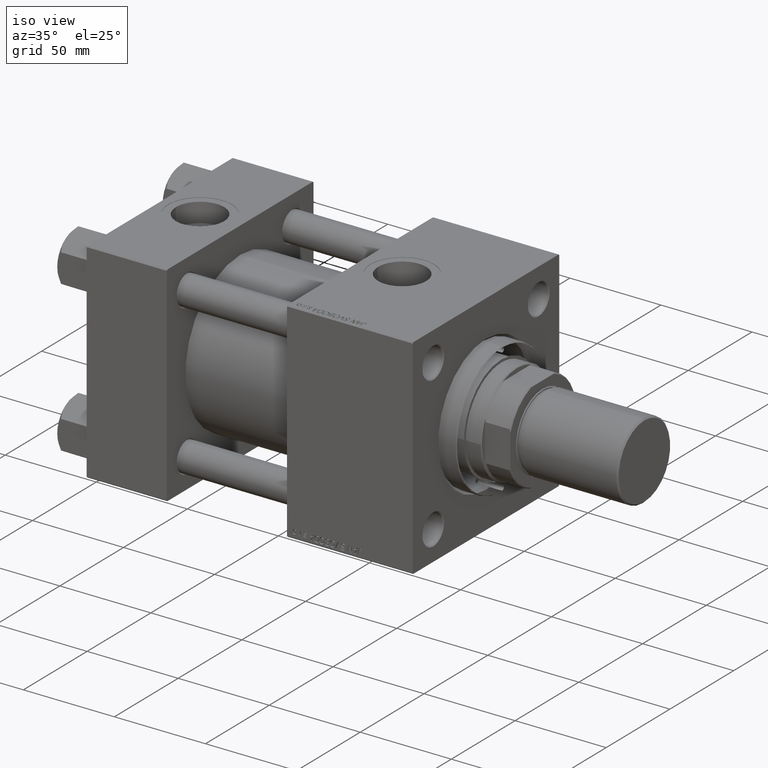
[diagram: clean part render]
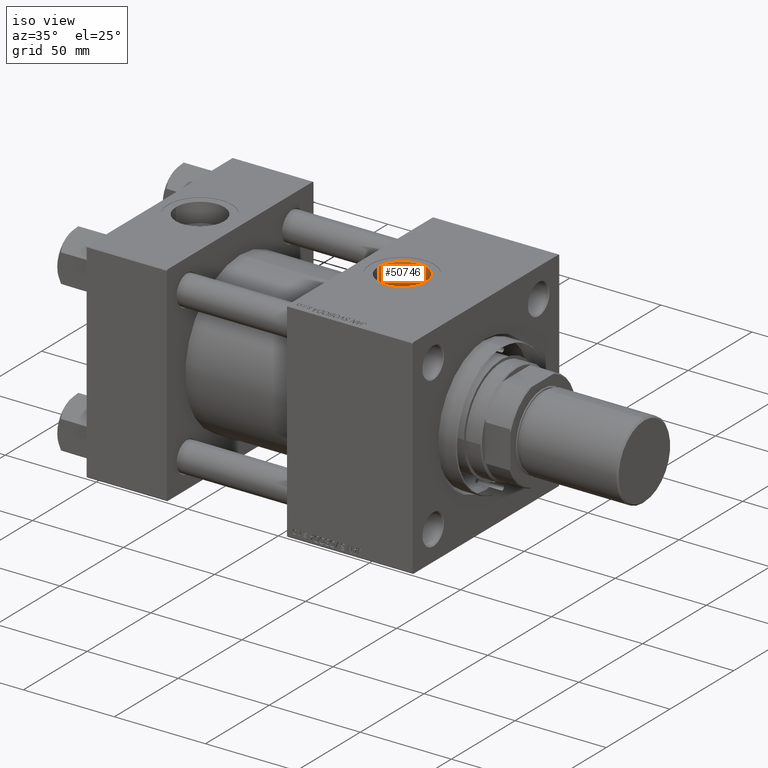
[diagram: same view with one face highlighted and labeled with its STEP entity id]
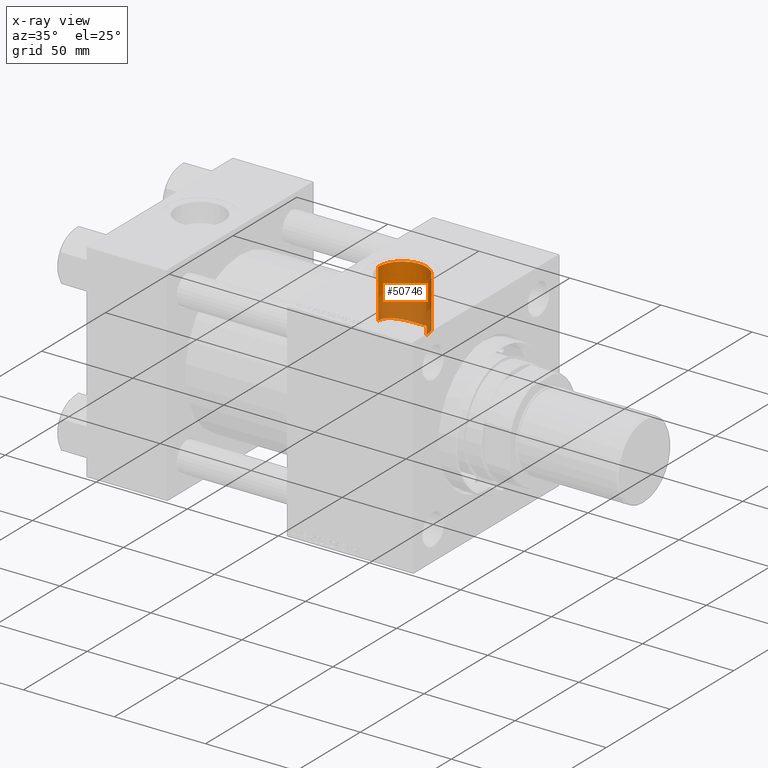
[diagram: x-ray of the same camera — body ghosted, the highlighted face saturated]
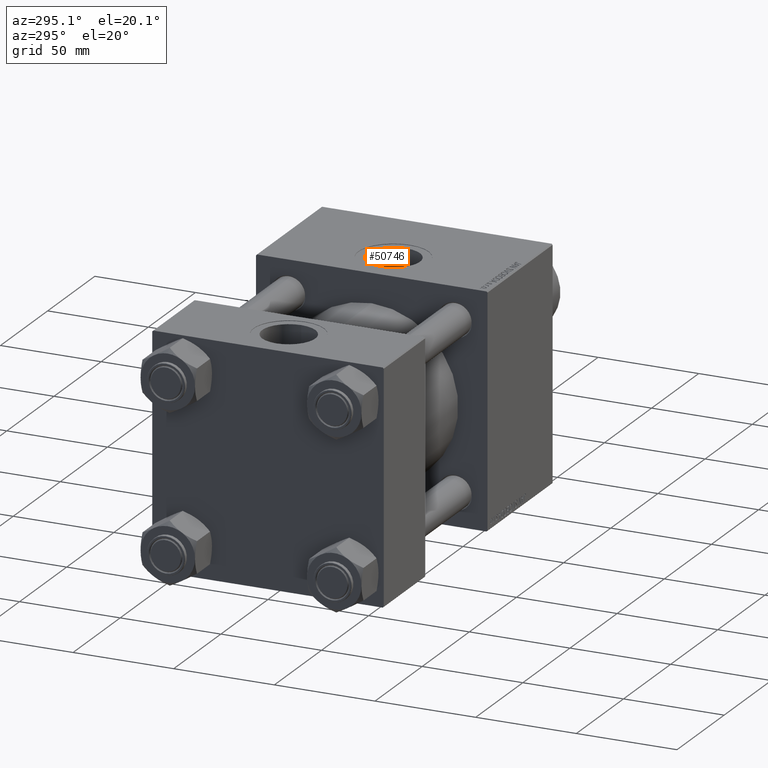
[diagram: same view with one face highlighted and labeled with its STEP entity id]
A machine part, iso view. The second image highlights one B-rep face of the part: STEP entity #50746.
The next image is the same camera in x-ray: the body ghosted, the highlighted face saturated — about 46% of this face is hidden behind the body in this view.
A second angle (auxiliary view) of the same face is appended — the face is thin or edge-on in the first view.
In plain terms, the highlighted cylindrical surface (edge-blend (fillet) strip) has radius 13.22 mm, axis along (0, 0, -1).
Its self-contained STEP definition (entity closure, byte-faithful):
#17 = DIRECTION ( 'NONE',  ( 0.000000000000000000, 0.000000000000000000, -1.000000000000000000 ) ) ;
#78 = CARTESIAN_POINT ( 'NONE',  ( 132.1158780443898024, 13.21938793416951974, 27.48631992650904010 ) ) ;
#311 = CARTESIAN_POINT ( 'NONE',  ( 119.7800000000000153, 0.8853305914797939824, 30.50000000000000000 ) ) ;
#577 = CARTESIAN_POINT ( 'NONE',  ( 144.4400539947568234, 6.639260050566252680, 29.77114450595017203 ) ) ;
#2735 = ORIENTED_EDGE ( 'NONE', *, *, #8078, .T. ) ;
#2818 = ORIENTED_EDGE ( 'NONE', *, *, #48894, .T. ) ;
#3972 = CARTESIAN_POINT ( 'NONE',  ( 139.6551846396598648, 11.45468527620831445, 28.27192220920700194 ) ) ;
#4235 = CARTESIAN_POINT ( 'NONE',  ( 143.4952304289514018, 8.084527078603693795, 29.41823973957059479 ) ) ;
#4474 = CARTESIAN_POINT ( 'NONE',  ( 133.4282611383910648, 13.22030123121098732, 27.48588065662368152 ) ) ;
#4733 = CARTESIAN_POINT ( 'NONE',  ( 136.0330449471945826, 12.87471665312960312, 27.64960489812618505 ) ) ;
#6170 = CARTESIAN_POINT ( 'NONE',  ( 133.0000000000000000, -6.938893903907229955E-15, 80.30000000000001137 ) ) ;
#8078 = EDGE_CURVE ( 'NONE', #50656, #35416, #28643, .T. ) ;
#8116 = CARTESIAN_POINT ( 'NONE',  ( 129.9671720014201810, 12.87481232180879864, 27.64956114675656096 ) ) ;
#8373 = CARTESIAN_POINT ( 'NONE',  ( 141.7476024807662327, 9.948642908172359967, 28.83879766247067877 ) ) ;
#8377 = DIRECTION ( 'NONE',  ( 1.000000000000000000, 0.000000000000000000, 0.000000000000000000 ) ) ;
#8615 = CARTESIAN_POINT ( 'NONE',  ( 145.5309328132961184, 4.299378174509804751, 30.20619208370726483 ) ) ;
#8870 = CARTESIAN_POINT ( 'NONE',  ( 119.7800000000000011, -6.943352468801200285E-15, 30.50000000000000000 ) ) ;
#11049 = CARTESIAN_POINT ( 'NONE',  ( 146.2200000000000273, -5.319910835434427226E-15, 80.30000000000001137 ) ) ;
#12002 = CARTESIAN_POINT ( 'NONE',  ( 146.1344454461879820, 1.741599333497275692, 30.46260822947750313 ) ) ;
#12516 = CARTESIAN_POINT ( 'NONE',  ( 123.9604469590067737, 9.655881393488940034, 28.93291879524302601 ) ) ;
#12786 = VERTEX_POINT ( 'NONE', #41898 ) ;
#14711 = VECTOR ( 'NONE', #26850, 1000.000000000000000 ) ;
#15570 = CARTESIAN_POINT ( 'NONE',  ( 119.7800000000000011, -6.938893903907229955E-15, 80.30000000000001137 ) ) ;
#15883 = CARTESIAN_POINT ( 'NONE',  ( 138.9000745779881640, 11.86237421120550728, 28.10103656142621631 ) ) ;
#16130 = CARTESIAN_POINT ( 'NONE',  ( 134.7476378202687783, 13.11137972316413780, 27.53804751008607710 ) ) ;
#16396 = CARTESIAN_POINT ( 'NONE',  ( 144.8486707773160447, 5.879082431193934255, 29.93053973753962893 ) ) ;
#16665 = CARTESIAN_POINT ( 'NONE',  ( 120.1252330640597137, 3.032800796582769465, 30.35185677671185189 ) ) ;
#16910 = CARTESIAN_POINT ( 'NONE',  ( 120.2319993117068293, 3.455137540533165019, 30.30659791570459305 ) ) ;
#18125 = CIRCLE ( 'NONE', #34671, 13.22000000000000952 ) ;
#19458 = LINE ( 'NONE', #15570, #31360 ) ;
#20032 = CARTESIAN_POINT ( 'NONE',  ( 142.9536134907683333, 8.741946199344296176, 29.22721545031311763 ) ) ;
#20274 = CARTESIAN_POINT ( 'NONE',  ( 131.2506797857263336, 13.13278457719500025, 27.52845918261877500 ) ) ;
#20473 = ORIENTED_EDGE ( 'NONE', *, *, #45765, .F. ) ;
#20539 = CARTESIAN_POINT ( 'NONE',  ( 145.7865286154098499, 3.471528681234170133, 30.31422367464548984 ) ) ;
#20800 = CARTESIAN_POINT ( 'NONE',  ( 123.0710805864428039, 8.738917889067311151, 29.22327357459187880 ) ) ;
#23001 = CYLINDRICAL_SURFACE ( 'NONE', #31432, 13.22000000000000952 ) ;
#23659 = CARTESIAN_POINT ( 'NONE',  ( 135.1799748998507766, 13.04627916250819730, 27.56906926130731961 ) ) ;
#24679 = CARTESIAN_POINT ( 'NONE',  ( 119.8680193242562524, 1.753824631493097641, 30.46155710112498838 ) ) ;
#26169 = CARTESIAN_POINT ( 'NONE',  ( 146.2200000000000273, 3.735193139165886172E-15, 30.50000000000000000 ) ) ;
#26850 = DIRECTION ( 'NONE',  ( 0.000000000000000000, 0.000000000000000000, -1.000000000000000000 ) ) ;
#27554 = CARTESIAN_POINT ( 'NONE',  ( 126.3563546431009144, 11.46182805055125620, 28.26908420738158512 ) ) ;
#27803 = CARTESIAN_POINT ( 'NONE',  ( 146.2200000000000273, 0.8722128882349654555, 30.49999999999999289 ) ) ;
#27806 = DIRECTION ( 'NONE',  ( -0.000000000000000000, -0.000000000000000000, -1.000000000000000000 ) ) ;
#28036 = VERTEX_POINT ( 'NONE', #45838 ) ;
#28059 = CARTESIAN_POINT ( 'NONE',  ( 127.1102210281448492, 11.86664554023929696, 28.09917040484756257 ) ) ;
#28316 = CARTESIAN_POINT ( 'NONE',  ( 120.6376809090364475, 4.704130006481640258, 30.13777036718243707 ) ) ;
#28643 = B_SPLINE_CURVE_WITH_KNOTS ( 'NONE', 3,
 ( #8870, #311, #24679, #16665, #16910, #48275, #28316, #48022, #32201, #43626, #40493, #20800, #36612, #12516, #39976, #48530, #40229, #27554, #28059, #39725, #43879, #35595, #8116, #20274, #78, #4474, #43366, #16130, #23659, #4733, #39471, #36094, #31942, #15883, #3972, #31693, #8373, #20032, #4235, #47508, #577, #16396, #44131, #8615, #20539, #12002, #27803, #36356 ),
 .UNSPECIFIED., .F., .F.,
 ( 4, 2, 2, 2, 2, 2, 2, 2, 2, 2, 2, 2, 2, 2, 2, 2, 2, 2, 2, 2, 2, 2, 2, 4 ),
 ( 4.325634412544316665E-21, 0.002616098461671956601, 0.003924147692507940106, 0.005232196923343922744, 0.007848295385015868070, 0.009156344615851843768, 0.01046439384668781600, 0.01177244307752379170, 0.01308049230835976393, 0.01569659077003171532, 0.01700464000086768929, 0.01831268923170366672, 0.02092878769337561812, 0.02223683692421159208, 0.02354488615504756605, 0.02485293538588353654, 0.02616098461671951050, 0.02877708307839145843, 0.03139318154006340289, 0.03400928000173535082, 0.03531732923257133172, 0.03662537846340730568, 0.03924147692507923973, 0.04185757538675118766 ),
 .UNSPECIFIED. ) ;
#31360 = VECTOR ( 'NONE', #17, 1000.000000000000000 ) ;
#31427 = EDGE_CURVE ( 'NONE', #28036, #12786, #18125, .T. ) ;
#31432 = AXIS2_PLACEMENT_3D ( 'NONE', #6170, #38824, #45823 ) ;
#31693 = CARTESIAN_POINT ( 'NONE',  ( 141.0769586213246498, 10.50066839750485315, 28.63996095294262290 ) ) ;
#31942 = CARTESIAN_POINT ( 'NONE',  ( 137.6947557636227089, 12.36597221443003036, 27.88128898796226096 ) ) ;
#32201 = CARTESIAN_POINT ( 'NONE',  ( 121.5464187942307319, 6.657702757070322441, 29.77360117846064114 ) ) ;
#33417 = ORIENTED_EDGE ( 'NONE', *, *, #31427, .F. ) ;
#34638 = LINE ( 'NONE', #11049, #14711 ) ;
#34671 = AXIS2_PLACEMENT_3D ( 'NONE', #39731, #27806, #8377 ) ;
#35416 = VERTEX_POINT ( 'NONE', #26169 ) ;
#35595 = CARTESIAN_POINT ( 'NONE',  ( 129.5390996583176104, 12.76638286409401601, 27.69998554717495765 ) ) ;
#36094 = CARTESIAN_POINT ( 'NONE',  ( 137.2838867571578874, 12.51419676702962391, 27.81482270176898908 ) ) ;
#36356 = CARTESIAN_POINT ( 'NONE',  ( 146.2200000000000273, 3.735193139165886172E-15, 30.50000000000000000 ) ) ;
#36612 = CARTESIAN_POINT ( 'NONE',  ( 123.3580458352676601, 9.054406913280253377, 29.12674974908795278 ) ) ;
#38824 = DIRECTION ( 'NONE',  ( 0.000000000000000000, 0.000000000000000000, -1.000000000000000000 ) ) ;
#39471 = CARTESIAN_POINT ( 'NONE',  ( 136.4537769000338301, 12.76825092159768893, 27.69912004121968963 ) ) ;
#39725 = CARTESIAN_POINT ( 'NONE',  ( 128.2995010675730896, 12.36358778692498284, 27.88233061437986748 ) ) ;
#39731 = CARTESIAN_POINT ( 'NONE',  ( 133.0000000000000000, -6.938893903907229955E-15, 57.30000000000000426 ) ) ;
#39976 = CARTESIAN_POINT ( 'NONE',  ( 124.2758824470720072, 9.941865499008200047, 28.83560624549484430 ) ) ;
#40229 = CARTESIAN_POINT ( 'NONE',  ( 125.2821944318444878, 10.74195786085158488, 28.54691747565395588 ) ) ;
#40493 = CARTESIAN_POINT ( 'NONE',  ( 122.5258438300172514, 8.077386899213495397, 29.41299415509606519 ) ) ;
#41674 = FACE_OUTER_BOUND ( 'NONE', #41786, .T. ) ;
#41786 = EDGE_LOOP ( 'NONE', ( #20473, #33417, #2818, #2735 ) ) ;
#41898 = CARTESIAN_POINT ( 'NONE',  ( 146.2200000000000273, -5.319910835434427226E-15, 57.30000000000000426 ) ) ;
#43366 = CARTESIAN_POINT ( 'NONE',  ( 133.8707971486062434, 13.19864495021412765, 27.49632903481744250 ) ) ;
#43626 = CARTESIAN_POINT ( 'NONE',  ( 122.2665463709840736, 7.729596063406410700, 29.50659126331700932 ) ) ;
#43879 = CARTESIAN_POINT ( 'NONE',  ( 128.7057454272866721, 12.51070502699271358, 27.81639787021163102 ) ) ;
#44131 = CARTESIAN_POINT ( 'NONE',  ( 145.0336013837878397, 5.490534600637515972, 30.00443638898287446 ) ) ;
#45098 = CARTESIAN_POINT ( 'NONE',  ( 119.7800000000000011, -6.943352468801200285E-15, 30.50000000000000000 ) ) ;
#45765 = EDGE_CURVE ( 'NONE', #12786, #35416, #34638, .T. ) ;
#45823 = DIRECTION ( 'NONE',  ( -1.000000000000000000, 0.000000000000000000, 0.000000000000000000 ) ) ;
#45838 = CARTESIAN_POINT ( 'NONE',  ( 119.7800000000000011, -6.938893903907229955E-15, 57.30000000000000426 ) ) ;
#47508 = CARTESIAN_POINT ( 'NONE',  ( 144.2150775797848894, 7.012538402017727712, 29.68517992239744174 ) ) ;
#48022 = CARTESIAN_POINT ( 'NONE',  ( 121.1389901450788642, 5.902061921074143847, 29.93445894569350685 ) ) ;
#48275 = CARTESIAN_POINT ( 'NONE',  ( 120.4883807563689260, 4.291759651082204918, 30.19948098470460351 ) ) ;
#48530 = CARTESIAN_POINT ( 'NONE',  ( 124.9359808178920446, 10.48439370246422264, 28.64280652864378496 ) ) ;
#48894 = EDGE_CURVE ( 'NONE', #28036, #50656, #19458, .T. ) ;
#50656 = VERTEX_POINT ( 'NONE', #45098 ) ;
#50746 = ADVANCED_FACE ( 'NONE', ( #41674 ), #23001, .F. ) ;